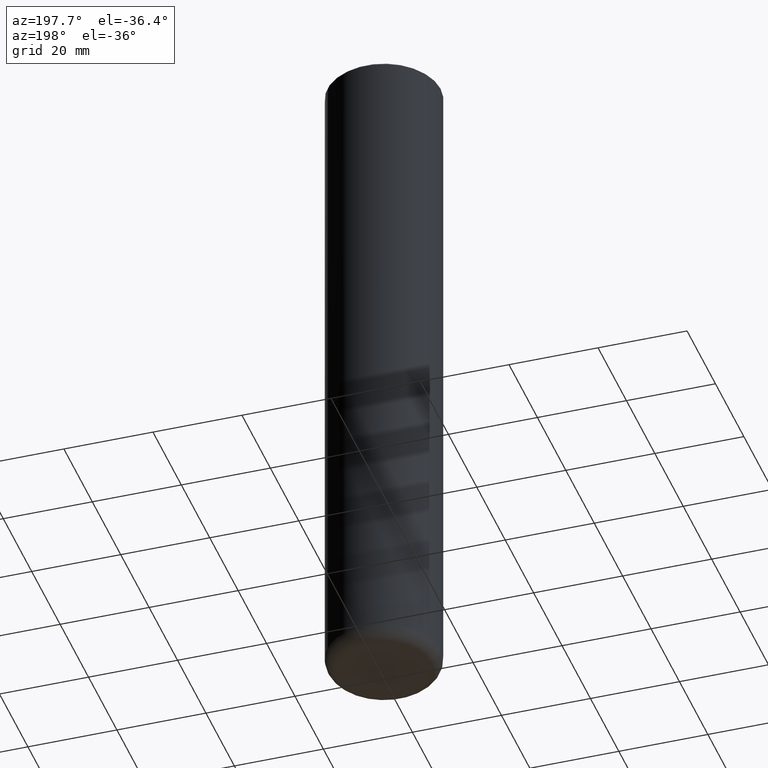
[diagram: clean part render]
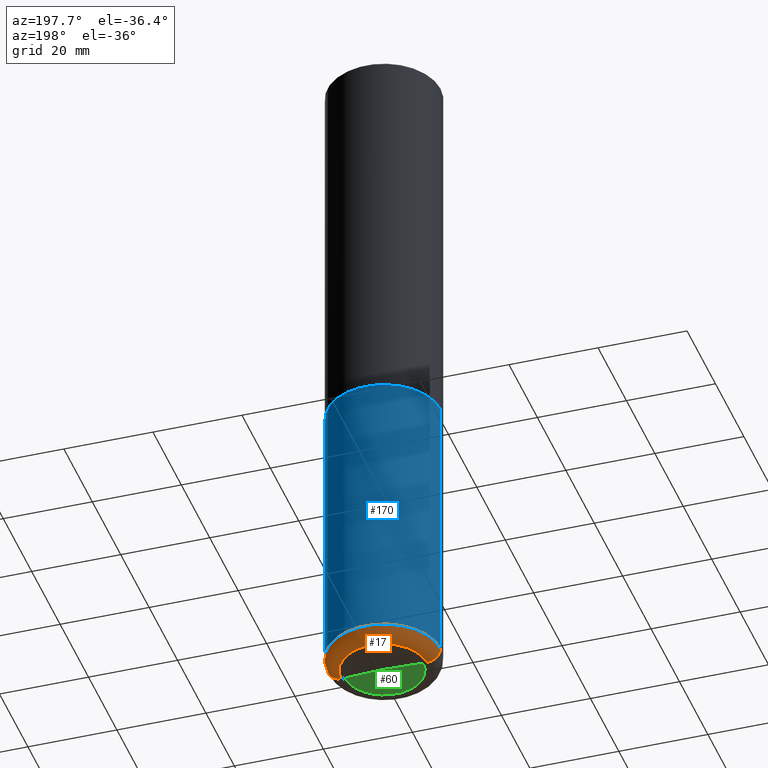
[diagram: same view with three faces highlighted in distinct colors, each labeled with its STEP entity id]
A machine part, auxiliary view with three faces highlighted in distinct colors.
Their STEP definitions:

[orange] entity #17 — the highlighted toroidal blend (fillet) surface has major radius 9.652 mm and minor (blend) radius 3.048 mm.
#8 = AXIS2_PLACEMENT_3D ( 'NONE', #311, #277, #435 ) ;
#9 = EDGE_CURVE ( 'NONE', #315, #18, #72, .T. ) ;
#17 = ADVANCED_FACE ( 'NONE', ( #217 ), #89, .T. ) ;
#18 = VERTEX_POINT ( 'NONE', #363 ) ;
#20 = CIRCLE ( 'NONE', #159, 0.1200000000000004952 ) ;
#24 = DIRECTION ( 'NONE',  ( 1.000000000000000000, -6.982962677686265133E-15, 0.000000000000000000 ) ) ;
#26 = ORIENTED_EDGE ( 'NONE', *, *, #461, .F. ) ;
#52 = DIRECTION ( 'NONE',  ( -1.000000000000000000, 7.105427357600993970E-15, 0.000000000000000000 ) ) ;
#64 = CIRCLE ( 'NONE', #490, 0.5000000000000000000 ) ;
#72 = CIRCLE ( 'NONE', #402, 0.3789528157401960695 ) ;
#89 = TOROIDAL_SURFACE ( 'NONE', #352, 0.3800000000000003930, 0.1200000000000004952 ) ;
#104 = DIRECTION ( 'NONE',  ( -2.445468806185136597E-29, 3.491481338843145583E-15, 1.000000000000000000 ) ) ;
#105 = CARTESIAN_POINT ( 'NONE',  ( 1.467281283711081734E-28, -2.094888803305886955E-14, -5.999999999999999112 ) ) ;
#132 = CARTESIAN_POINT ( 'NONE',  ( -0.4999999999999999445, -1.260412419339080680E-14, -5.880004569232298195 ) ) ;
#140 = CIRCLE ( 'NONE', #8, 0.1200000000000004952 ) ;
#154 = ORIENTED_EDGE ( 'NONE', *, *, #9, .T. ) ;
#159 = AXIS2_PLACEMENT_3D ( 'NONE', #238, #350, #52 ) ;
#181 = VERTEX_POINT ( 'NONE', #132 ) ;
#183 = CARTESIAN_POINT ( 'NONE',  ( 1.437936775428365776E-28, -2.052992622578700095E-14, -5.880004569232298195 ) ) ;
#196 = CARTESIAN_POINT ( 'NONE',  ( 1.437936775428365776E-28, -2.052992622578700095E-14, -5.880004569232298195 ) ) ;
#212 = ORIENTED_EDGE ( 'NONE', *, *, #242, .T. ) ;
#217 = FACE_OUTER_BOUND ( 'NONE', #480, .T. ) ;
#238 = CARTESIAN_POINT ( 'NONE',  ( -0.3800000000000003930, -1.782986382989861784E-14, -5.880004569232298195 ) ) ;
#239 = VERTEX_POINT ( 'NONE', #389 ) ;
#242 = EDGE_CURVE ( 'NONE', #18, #181, #20, .T. ) ;
#244 = DIRECTION ( 'NONE',  ( -2.445468806185136597E-29, 3.491481338843145583E-15, 1.000000000000000000 ) ) ;
#253 = ORIENTED_EDGE ( 'NONE', *, *, #373, .F. ) ;
#264 = CARTESIAN_POINT ( 'NONE',  ( 0.3789528157401960695, -2.359510140197678140E-14, -5.999999999999999112 ) ) ;
#277 = DIRECTION ( 'NONE',  ( -6.982962677686266711E-15, -1.000000000000000000, 3.491481338843145583E-15 ) ) ;
#311 = CARTESIAN_POINT ( 'NONE',  ( 0.3800000000000003930, -2.318345204330778419E-14, -5.880004569232298195 ) ) ;
#315 = VERTEX_POINT ( 'NONE', #264 ) ;
#350 = DIRECTION ( 'NONE',  ( 7.105427357601001859E-15, 1.000000000000000000, -3.491481338843145583E-15 ) ) ;
#352 = AXIS2_PLACEMENT_3D ( 'NONE', #183, #395, #475 ) ;
#363 = CARTESIAN_POINT ( 'NONE',  ( -0.3789528157401960695, -1.761673943792252384E-14, -5.999999999999999112 ) ) ;
#373 = EDGE_CURVE ( 'NONE', #315, #239, #140, .T. ) ;
#389 = CARTESIAN_POINT ( 'NONE',  ( 0.5000000000000000000, -2.402140756463013115E-14, -5.880004569232298195 ) ) ;
#395 = DIRECTION ( 'NONE',  ( -2.445468806185136597E-29, 3.491481338843145583E-15, 1.000000000000000000 ) ) ;
#402 = AXIS2_PLACEMENT_3D ( 'NONE', #105, #244, #24 ) ;
#408 = DIRECTION ( 'NONE',  ( 1.000000000000000000, -6.982962677686262766E-15, 0.000000000000000000 ) ) ;
#435 = DIRECTION ( 'NONE',  ( 1.000000000000000000, -6.982962677686271444E-15, 0.000000000000000000 ) ) ;
#461 = EDGE_CURVE ( 'NONE', #239, #181, #64, .T. ) ;
#475 = DIRECTION ( 'NONE',  ( 1.000000000000000000, -6.982962677686265922E-15, 4.883557194083112901E-29 ) ) ;
#480 = EDGE_LOOP ( 'NONE', ( #154, #212, #26, #253 ) ) ;
#490 = AXIS2_PLACEMENT_3D ( 'NONE', #196, #104, #408 ) ;

[blue] entity #170 — the highlighted cylindrical surface (partial cylindrical patch) has radius 12.7 mm, axis along (-0, 0, 1).
#7 = CARTESIAN_POINT ( 'NONE',  ( -0.4999999999999997224, 3.552713678800498957E-15, -2.459467545127451490E-29 ) ) ;
#13 = DIRECTION ( 'NONE',  ( 1.000000000000000000, -6.982962677686266711E-15, 4.876176775795935793E-29 ) ) ;
#16 = CYLINDRICAL_SURFACE ( 'NONE', #227, 0.4999999999999997224 ) ;
#25 = DIRECTION ( 'NONE',  ( -2.445468806185136877E-29, 3.491481338843145188E-15, 1.000000000000000000 ) ) ;
#57 = EDGE_CURVE ( 'NONE', #239, #117, #406, .T. ) ;
#64 = CIRCLE ( 'NONE', #490, 0.5000000000000000000 ) ;
#94 = CARTESIAN_POINT ( 'NONE',  ( 0.4999999999999994449, -1.527523085743874787E-14, -3.375000000000000888 ) ) ;
#103 = ORIENTED_EDGE ( 'NONE', *, *, #137, .F. ) ;
#104 = DIRECTION ( 'NONE',  ( -2.445468806185136597E-29, 3.491481338843145583E-15, 1.000000000000000000 ) ) ;
#117 = VERTEX_POINT ( 'NONE', #94 ) ;
#132 = CARTESIAN_POINT ( 'NONE',  ( -0.4999999999999999445, -1.260412419339080680E-14, -5.880004569232298195 ) ) ;
#137 = EDGE_CURVE ( 'NONE', #117, #189, #465, .T. ) ;
#144 = AXIS2_PLACEMENT_3D ( 'NONE', #240, #266, #312 ) ;
#170 = ADVANCED_FACE ( 'NONE', ( #386 ), #16, .T. ) ;
#176 = CARTESIAN_POINT ( 'NONE',  ( 0.000000000000000000, 0.000000000000000000, 0.000000000000000000 ) ) ;
#181 = VERTEX_POINT ( 'NONE', #132 ) ;
#189 = VERTEX_POINT ( 'NONE', #269 ) ;
#196 = CARTESIAN_POINT ( 'NONE',  ( 1.437936775428365776E-28, -2.052992622578700095E-14, -5.880004569232298195 ) ) ;
#209 = ORIENTED_EDGE ( 'NONE', *, *, #57, .F. ) ;
#227 = AXIS2_PLACEMENT_3D ( 'NONE', #176, #274, #13 ) ;
#239 = VERTEX_POINT ( 'NONE', #389 ) ;
#240 = CARTESIAN_POINT ( 'NONE',  ( 8.253457220874838256E-29, -1.178374951859561925E-14, -3.375000000000000888 ) ) ;
#266 = DIRECTION ( 'NONE',  ( -2.445468806185136597E-29, 3.491481338843145583E-15, 1.000000000000000000 ) ) ;
#269 = CARTESIAN_POINT ( 'NONE',  ( -0.4999999999999994449, -1.260412419339081154E-14, -3.375000000000000888 ) ) ;
#272 = EDGE_LOOP ( 'NONE', ( #359, #441, #103, #209 ) ) ;
#274 = DIRECTION ( 'NONE',  ( -2.445468806185136597E-29, 3.491481338843145583E-15, 1.000000000000000000 ) ) ;
#298 = EDGE_CURVE ( 'NONE', #181, #189, #344, .T. ) ;
#312 = DIRECTION ( 'NONE',  ( 1.000000000000000000, -6.982962677686266711E-15, 0.000000000000000000 ) ) ;
#344 = LINE ( 'NONE', #7, #474 ) ;
#359 = ORIENTED_EDGE ( 'NONE', *, *, #461, .T. ) ;
#386 = FACE_OUTER_BOUND ( 'NONE', #272, .T. ) ;
#387 = DIRECTION ( 'NONE',  ( -2.445468806185136877E-29, 3.491481338843145188E-15, 1.000000000000000000 ) ) ;
#389 = CARTESIAN_POINT ( 'NONE',  ( 0.5000000000000000000, -2.402140756463013115E-14, -5.880004569232298195 ) ) ;
#398 = VECTOR ( 'NONE', #25, 39.37007874015748143 ) ;
#406 = LINE ( 'NONE', #479, #398 ) ;
#408 = DIRECTION ( 'NONE',  ( 1.000000000000000000, -6.982962677686262766E-15, 0.000000000000000000 ) ) ;
#441 = ORIENTED_EDGE ( 'NONE', *, *, #298, .T. ) ;
#461 = EDGE_CURVE ( 'NONE', #239, #181, #64, .T. ) ;
#465 = CIRCLE ( 'NONE', #144, 0.4999999999999994449 ) ;
#474 = VECTOR ( 'NONE', #387, 39.37007874015748143 ) ;
#479 = CARTESIAN_POINT ( 'NONE',  ( 0.4999999999999997224, -3.491481338843131383E-15, 2.438088387897966495E-29 ) ) ;
#490 = AXIS2_PLACEMENT_3D ( 'NONE', #196, #104, #408 ) ;

[green] entity #60 — the highlighted conical surface has half-angle 88 deg.
#10 = CARTESIAN_POINT ( 'NONE',  ( 1.464301836969204116E-28, -2.090486974609824986E-14, -5.987604880927720252 ) ) ;
#27 = CARTESIAN_POINT ( 'NONE',  ( 0.3469528157401960411, -2.332818210049246927E-14, -5.999720740230696236 ) ) ;
#33 = LINE ( 'NONE', #27, #87 ) ;
#48 = AXIS2_PLACEMENT_3D ( 'NONE', #440, #195, #330 ) ;
#60 = ADVANCED_FACE ( 'NONE', ( #107 ), #169, .F. ) ;
#77 = VERTEX_POINT ( 'NONE', #180 ) ;
#87 = VECTOR ( 'NONE', #374, 39.37007874015748143 ) ;
#92 = EDGE_CURVE ( 'NONE', #224, #77, #259, .T. ) ;
#107 = FACE_OUTER_BOUND ( 'NONE', #246, .T. ) ;
#145 = DIRECTION ( 'NONE',  ( -2.445468806185136597E-29, 3.491481338843145583E-15, 1.000000000000000000 ) ) ;
#167 = AXIS2_PLACEMENT_3D ( 'NONE', #228, #145, #399 ) ;
#169 = CONICAL_SURFACE ( 'NONE', #48, 0.3469528157401960411, 1.535889741755011029 ) ;
#180 = CARTESIAN_POINT ( 'NONE',  ( -0.3469528157401960411, -1.852515443955370911E-14, -5.999720740230696236 ) ) ;
#195 = DIRECTION ( 'NONE',  ( 2.445468806185136597E-29, -3.491481338843145583E-15, -1.000000000000000000 ) ) ;
#224 = VERTEX_POINT ( 'NONE', #10 ) ;
#228 = CARTESIAN_POINT ( 'NONE',  ( 1.467212991605616561E-28, -2.094791300278565904E-14, -5.999720740230696236 ) ) ;
#243 = CIRCLE ( 'NONE', #167, 0.3469528157401960411 ) ;
#245 = CARTESIAN_POINT ( 'NONE',  ( -0.3469528157401960411, -1.852515443955370911E-14, -5.999720740230696236 ) ) ;
#246 = EDGE_LOOP ( 'NONE', ( #446, #401, #366 ) ) ;
#259 = LINE ( 'NONE', #245, #379 ) ;
#330 = DIRECTION ( 'NONE',  ( -1.000000000000000000, 6.982962677686270655E-15, 0.000000000000000000 ) ) ;
#351 = VERTEX_POINT ( 'NONE', #354 ) ;
#354 = CARTESIAN_POINT ( 'NONE',  ( 0.3469528157401960411, -2.332818210049246927E-14, -5.999720740230696236 ) ) ;
#366 = ORIENTED_EDGE ( 'NONE', *, *, #382, .F. ) ;
#374 = DIRECTION ( 'NONE',  ( 0.9993908270190957621, -6.978169709227537544E-15, -0.03489949670249996999 ) ) ;
#379 = VECTOR ( 'NONE', #415, 39.37007874015748143 ) ;
#382 = EDGE_CURVE ( 'NONE', #77, #351, #243, .T. ) ;
#399 = DIRECTION ( 'NONE',  ( 1.000000000000000000, -6.982962677686270655E-15, 0.000000000000000000 ) ) ;
#401 = ORIENTED_EDGE ( 'NONE', *, *, #427, .T. ) ;
#415 = DIRECTION ( 'NONE',  ( -0.9993908270190957621, 6.856857904024560415E-15, -0.03489949670249996999 ) ) ;
#427 = EDGE_CURVE ( 'NONE', #224, #351, #33, .T. ) ;
#440 = CARTESIAN_POINT ( 'NONE',  ( 1.467212991605616561E-28, -2.094791300278565904E-14, -5.999720740230696236 ) ) ;
#446 = ORIENTED_EDGE ( 'NONE', *, *, #92, .F. ) ;